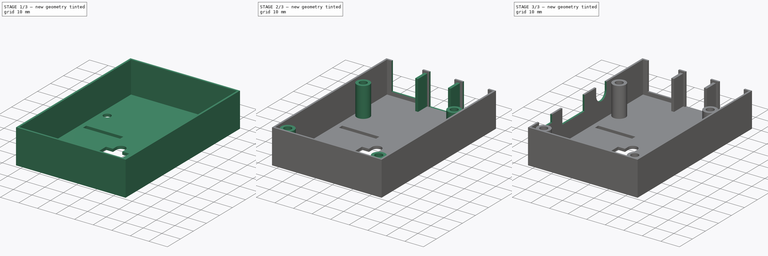
[diagram: build sequence overview — one tinted view per stage of 3, left to right]
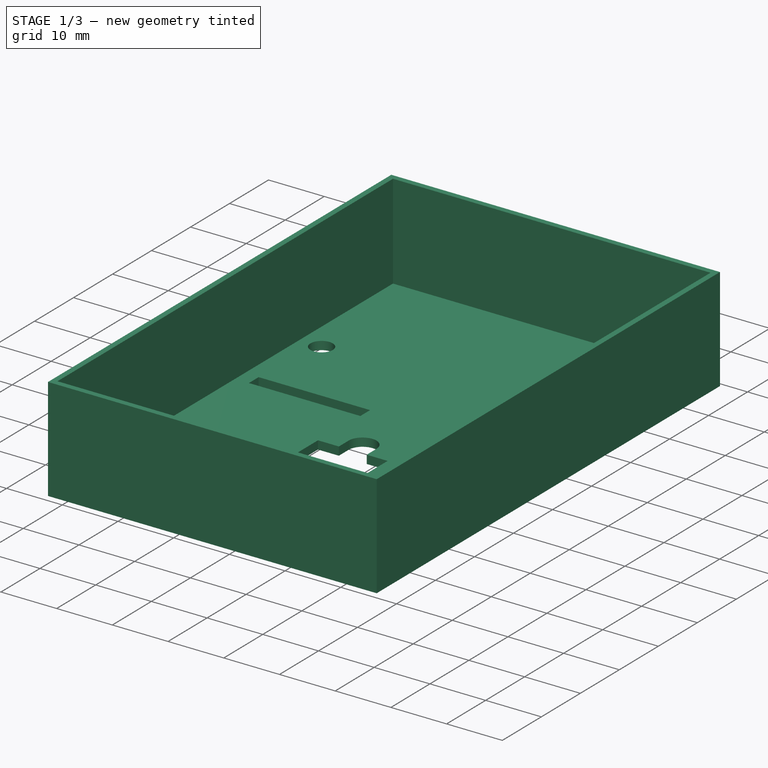
[diagram: stage 1 of 3 — iso view after this stage's code; geometry added in this stage tinted green]
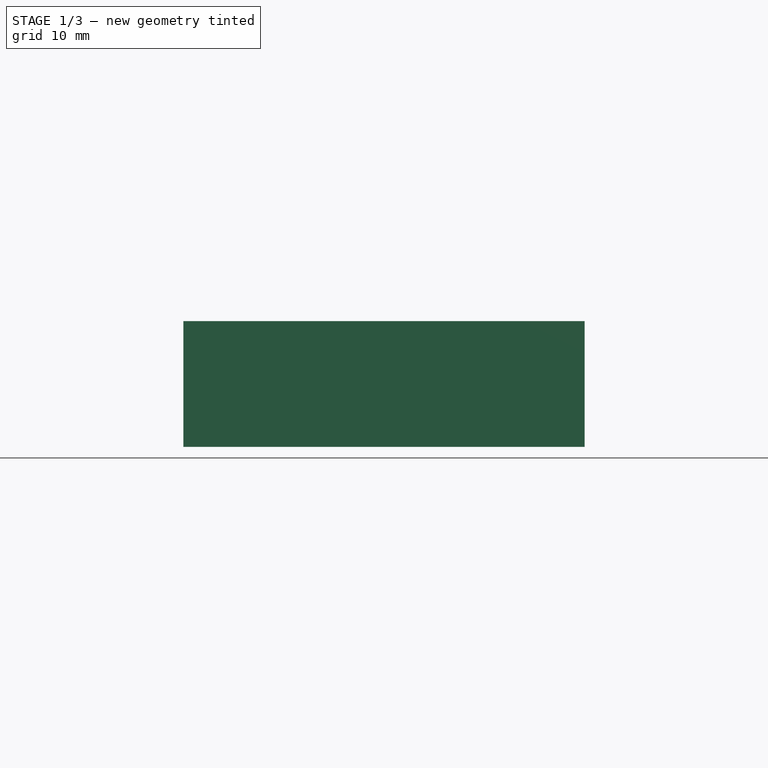
[diagram: stage 1 of 3 — front view after this stage's code; geometry added in this stage tinted green]
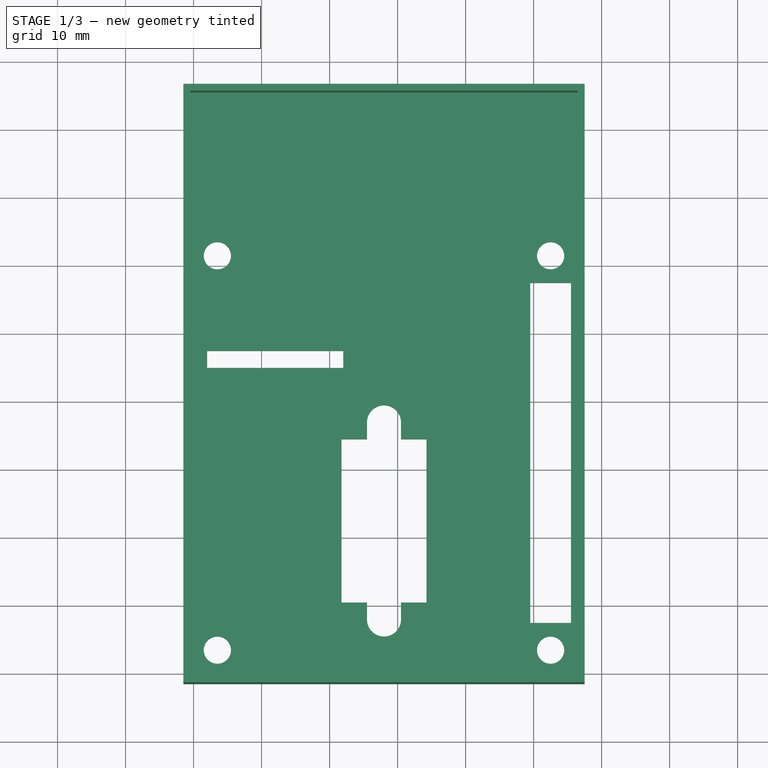
[diagram: stage 1 of 3 — top view after this stage's code; geometry added in this stage tinted green]
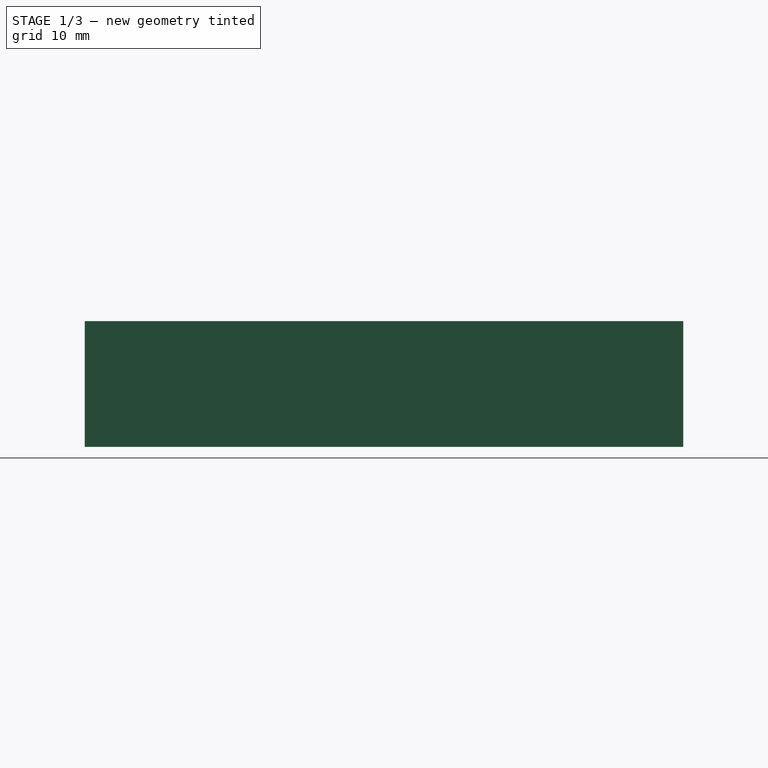
[diagram: stage 1 of 3 — right view after this stage's code; geometry added in this stage tinted green]
FCSTD DOCUMENT  (FreeCAD 0.16R6179 (Git))
Label: CaseTop
License: All rights reserved
LicenseURL: http://en.wikipedia.org/wiki/All_rights_reserved
objects: Sketcher::SketchObject×6, PartDesign::Pocket×4, PartDesign::Pad×2
note: 18 computed .brp shape members not serialized (recipe doc carries the construction recipe); baked Part::Feature solids carry a one-line shape summary decoded from their .brp

FEATURE [Sketcher::SketchObject] Sketch
  sketch-geometry (37):
    g0: LineSegment StartX=-1.5 StartY=86.5 StartZ=0 EndX=57.5 EndY=86.5 EndZ=0
    g1: LineSegment StartX=57.5 StartY=86.5 StartZ=0 EndX=57.5 EndY=-1.5 EndZ=0
    g2: LineSegment StartX=57.5 StartY=-1.5 StartZ=0 EndX=-1.5 EndY=-1.5 EndZ=0
    g3: LineSegment StartX=-1.5 StartY=-1.5 StartZ=0 EndX=-1.5 EndY=86.5 EndZ=0
    g4: LineSegment [constr] StartX=3.5 StartY=61.5 StartZ=0 EndX=52.5 EndY=61.5 EndZ=0
    g5: LineSegment [constr] StartX=52.5 StartY=61.5 StartZ=0 EndX=52.5 EndY=3.5 EndZ=0
    g6: LineSegment [constr] StartX=52.5 StartY=3.5 StartZ=0 EndX=3.5 EndY=3.5 EndZ=0
    g7: LineSegment [constr] StartX=3.5 StartY=3.5 StartZ=0 EndX=3.5 EndY=61.5 EndZ=0
    g8: Circle CenterX=3.5 CenterY=61.5 CenterZ=0 NormalX=0 NormalY=0 NormalZ=1 Radius=2
    g9: Circle CenterX=52.5 CenterY=61.5 CenterZ=0 NormalX=0 NormalY=0 NormalZ=1 Radius=2
    g10: Circle CenterX=52.5 CenterY=3.5 CenterZ=0 NormalX=0 NormalY=0 NormalZ=1 Radius=2
    g11: Circle CenterX=3.5 CenterY=3.5 CenterZ=0 NormalX=0 NormalY=0 NormalZ=1 Radius=2
    g12: LineSegment StartX=2 StartY=45 StartZ=0 EndX=22 EndY=45 EndZ=0
    g13: LineSegment StartX=22 StartY=45 StartZ=0 EndX=22 EndY=47.5 EndZ=0
    g14: LineSegment StartX=22 StartY=47.5 StartZ=0 EndX=2 EndY=47.5 EndZ=0
    g15: LineSegment StartX=2 StartY=47.5 StartZ=0 EndX=2 EndY=45 EndZ=0
    g16: LineSegment StartX=21.75 StartY=34.5 StartZ=0 EndX=25.5 EndY=34.5 EndZ=0
    g17: LineSegment StartX=34.25 StartY=34.5 StartZ=0 EndX=34.25 EndY=10.5 EndZ=0
    g18: LineSegment StartX=34.25 StartY=10.5 StartZ=0 EndX=30.5 EndY=10.5 EndZ=0
    g19: LineSegment StartX=21.75 StartY=10.5 StartZ=0 EndX=21.75 EndY=34.5 EndZ=0
    g20: LineSegment [constr] StartX=7.91921 StartY=22.5 StartZ=0 EndX=43.2159 EndY=22.5 EndZ=0
    g21: LineSegment [constr] StartX=28 StartY=92.2759 StartZ=0 EndX=28 EndY=-5.97798 EndZ=0
    g22: ArcOfCircle CenterX=28 CenterY=37 CenterZ=0 NormalX=0 NormalY=0 NormalZ=1 Radius=2.5 StartAngle=0 EndAngle=3.14159
    g23: GeomPoint [constr] X=28 Y=34.5 Z=0
    g24: LineSegment StartX=25.5 StartY=37 StartZ=0 EndX=25.5 EndY=34.5 EndZ=0
    g25: LineSegment StartX=30.5 StartY=37 StartZ=0 EndX=30.5 EndY=34.5 EndZ=0
    g26: LineSegment StartX=30.5 StartY=34.5 StartZ=0 EndX=34.25 EndY=34.5 EndZ=0
    g27: ArcOfCircle CenterX=28 CenterY=8 CenterZ=0 NormalX=0 NormalY=0 NormalZ=1 Radius=2.5 StartAngle=3.14159 EndAngle=6.28319
    g28: GeomPoint [constr] X=28 Y=10.5 Z=0
    g29: LineSegment StartX=25.5 StartY=8 StartZ=0 EndX=25.5 EndY=10.5 EndZ=0
    g30: LineSegment StartX=30.5 StartY=8 StartZ=0 EndX=30.5 EndY=10.5 EndZ=0
    g31: LineSegment StartX=25.5 StartY=10.5 StartZ=0 EndX=21.75 EndY=10.5 EndZ=0
    g32: LineSegment StartX=49.5 StartY=57.5 StartZ=0 EndX=55.5 EndY=57.5 EndZ=0
    g33: LineSegment StartX=55.5 StartY=57.5 StartZ=0 EndX=55.5 EndY=7.5 EndZ=0
    g34: LineSegment StartX=55.5 StartY=7.5 StartZ=0 EndX=49.5 EndY=7.5 EndZ=0
    g35: LineSegment StartX=49.5 StartY=7.5 StartZ=0 EndX=49.5 EndY=57.5 EndZ=0
    g36: LineSegment [constr] StartX=47.3202 StartY=32.5 StartZ=0 EndX=56.7615 EndY=32.5 EndZ=0
  constraints (108):
    c: Coincident(g0,g1)
    c: Coincident(g1,g2)
    c: Coincident(g2,g3)
    c: Coincident(g3,g0)
    c: Horizontal(g0)
    c: Horizontal(g2)
    c: Vertical(g1)
    c: Vertical(g3)
    c: Distance(g0) = 59
    c: Distance(g3) = 88
    c: DistanceX(g-1,g2) = -1.5
    c: DistanceY(g-1,g2) = -1.5
    c: Coincident(g4,g5)
    c: Coincident(g5,g6)
    c: Coincident(g6,g7)
    c: Coincident(g7,g4)
    c: Horizontal(g4)
    c: Horizontal(g6)
    c: Vertical(g5)
    c: Vertical(g7)
    c: DistanceX(g-1,g6) = 3.5
    c: DistanceY(g-1,g6) = 3.5
    c: Distance(g6) = 49
    c: Distance(g7) = 58
    c: Coincident(g8,g4)
    c: Coincident(g9,g4)
    c: Coincident(g10,g5)
    c: Coincident(g11,g6)
    c: Equal(g10,g11)
    c: Equal(g11,g8)
    c: Equal(g8,g9)
    c: Radius(g9) = 2
    c: Coincident(g12,g13)
    c: Coincident(g13,g14)
    c: Coincident(g14,g15)
    c: Coincident(g15,g12)
    c: Horizontal(g12)
    c: Horizontal(g14)
    c: Vertical(g13)
    c: Vertical(g15)
    c: DistanceY(g-1,g12) = 45
    c: Distance(g15) = 2.5
    c: Distance(g14) = 20
    c: DistanceX(g-1,g12) = 2
    c: Coincident(g26,g17)
    c: Coincident(g17,g18)
    c: Coincident(g31,g19)
    c: Coincident(g19,g16)
    c: Horizontal(g16)
    c: Horizontal(g18)
    c: Vertical(g17)
    c: Vertical(g19)
    c: Distance(g17) = 24
    c: Horizontal(g20)
    c: DistanceY(g20,g12) = 22.5
    c: Symmetric(g16,g31,g20)
    c: Vertical(g21)
    c: DistanceX(g-1,g21) = 28
    c: DistanceY(g-1,g21) = -5.97798
    c: Symmetric(g16,g26,g21)
    c: Distance(g21) = 98.2539
    c: Distance(g20) = 35.2967
    c: DistanceX(g-1,g20) = 7.91921
    c: PointOnObject(g22,g21)
    c: PointOnObject(g23,g21)
    c: PointOnObject(g23,g16)
    c: DistanceY(g23,g22) = 2.5
    c: DistanceY(g22,g22) = 0
    c: DistanceY(g22,g22) = 0
    c: Radius(g22) = 2.5
    c: Coincident(g24,g22)
    c: Vertical(g24)
    c: Coincident(g25,g22)
    c: Vertical(g25)
    c: Coincident(g26,g25)
    c: Tangent(g16,g26)
    c: Coincident(g16,g24)
    c: PointOnObject(g27,g21)
    c: PointOnObject(g28,g21)
    c: PointOnObject(g28,g18)
    c: DistanceY(g27,g28) = 2.5
    c: DistanceY(g27,g27) = 0
    c: DistanceY(g27,g27) = 0
    c: Radius(g27) = 2.5
    c: Coincident(g29,g27)
    c: Vertical(g29)
    c: Coincident(g30,g27)
    c: Vertical(g30)
    c: Coincident(g31,g29)
    c: Tangent(g18,g31)
    c: Coincident(g18,g30)
    c: DistanceX(g16,g17) = 12.5
    c: Coincident(g32,g33)
    c: Coincident(g33,g34)
    c: Coincident(g34,g35)
    c: Coincident(g35,g32)
    c: Horizontal(g32)
    c: Horizontal(g34)
    c: Vertical(g33)
    c: Vertical(g35)
    c: Symmetric(g33,g34,g5)
    c: Distance(g32) = 6
    c: Distance(g33) = 50
    c: Horizontal(g36)
    c: Distance(g36) = 9.44131
    c: DistanceY(g36,g4) = 29
    c: DistanceX(g36,g4) = -4.26154
    c: Symmetric(g33,g32,g36)
FEATURE [PartDesign::Pad] Pad  label="Outside"
  Length = 18.5
  Length2 = 100
  Sketch = -> Sketch
  Type = 0
FEATURE [Sketcher::SketchObject] Sketch001
  ExternalGeometry = -> [Pad]
  Placement = pos=(0,0,18.5) rot=(0,0,1;0rad)
  Support = -> Pad [Face30]
  sketch-geometry (4):
    g0: LineSegment StartX=-0.5 StartY=-0.5 StartZ=0 EndX=56.5 EndY=-0.5 EndZ=0
    g1: LineSegment StartX=56.5 StartY=-0.5 StartZ=0 EndX=56.5 EndY=85.5 EndZ=0
    g2: LineSegment StartX=56.5 StartY=85.5 StartZ=0 EndX=-0.5 EndY=85.5 EndZ=0
    g3: LineSegment StartX=-0.5 StartY=85.5 StartZ=0 EndX=-0.5 EndY=-0.5 EndZ=0
  constraints (12):
    c: Coincident(g0,g1)
    c: Coincident(g1,g2)
    c: Coincident(g2,g3)
    c: Coincident(g3,g0)
    c: Horizontal(g0)
    c: Horizontal(g2)
    c: Vertical(g1)
    c: Vertical(g3)
    c: DistanceY(g-3,g0) = 1
    c: DistanceX(g-3,g0) = 1
    c: DistanceX(g0,g-3) = 1
    c: DistanceY(g2,g-4) = 1
FEATURE [PartDesign::Pocket] Pocket  label="Inside"
  Length = 17
  Sketch = -> Sketch001
  Type = 0
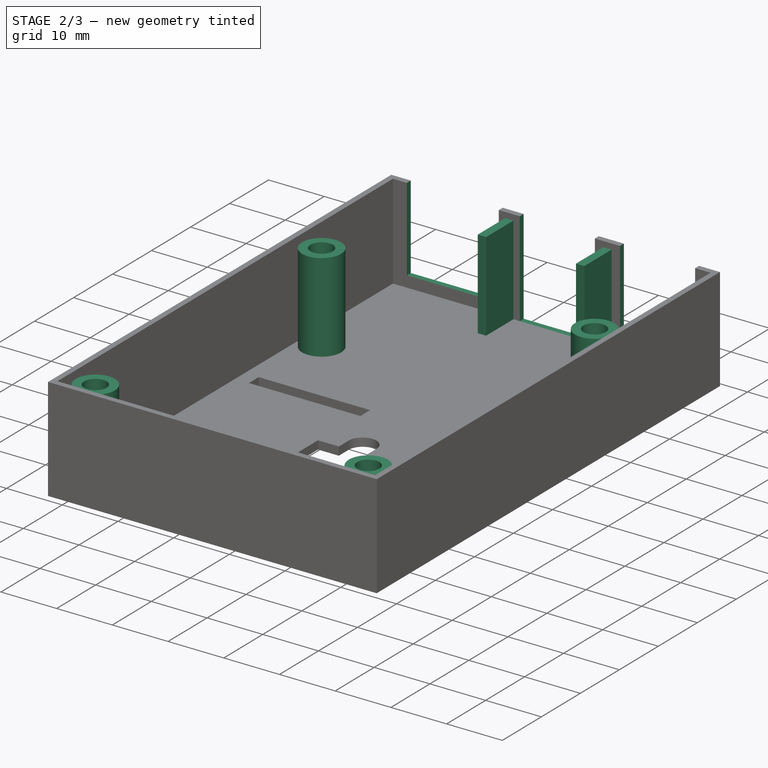
[diagram: stage 2 of 3 — iso view after this stage's code; geometry added in this stage tinted green]
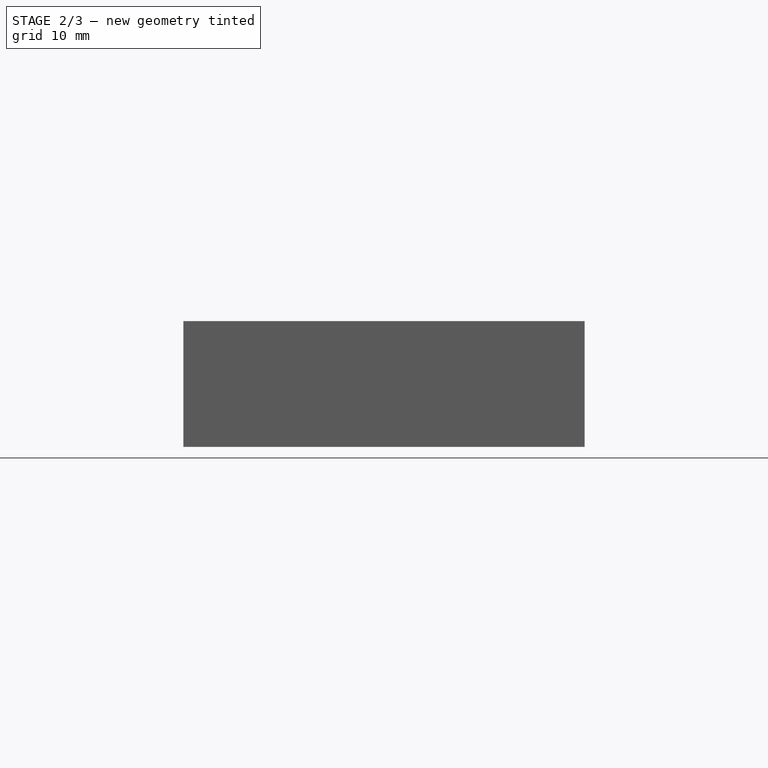
[diagram: stage 2 of 3 — front view after this stage's code; geometry added in this stage tinted green]
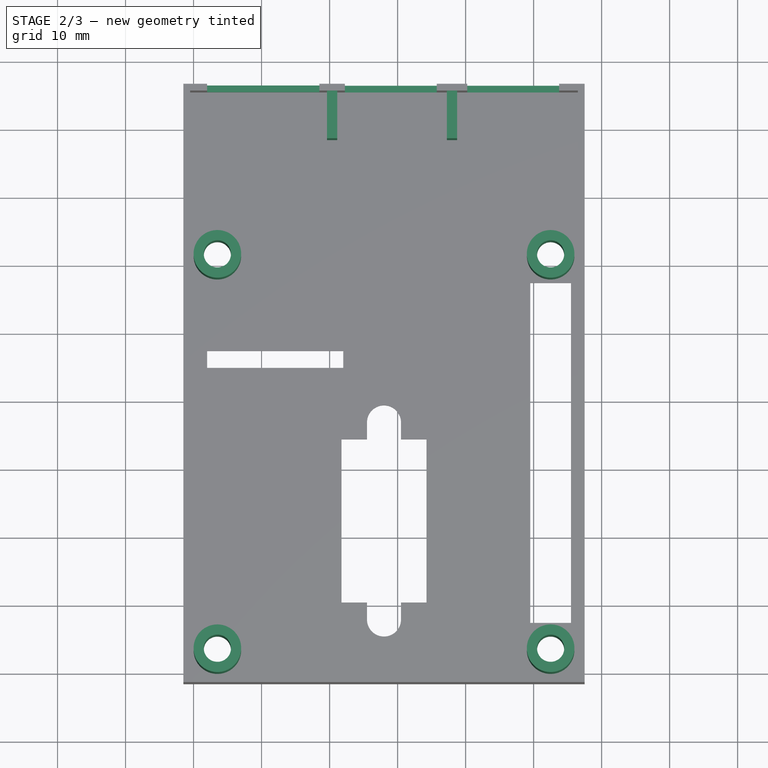
[diagram: stage 2 of 3 — top view after this stage's code; geometry added in this stage tinted green]
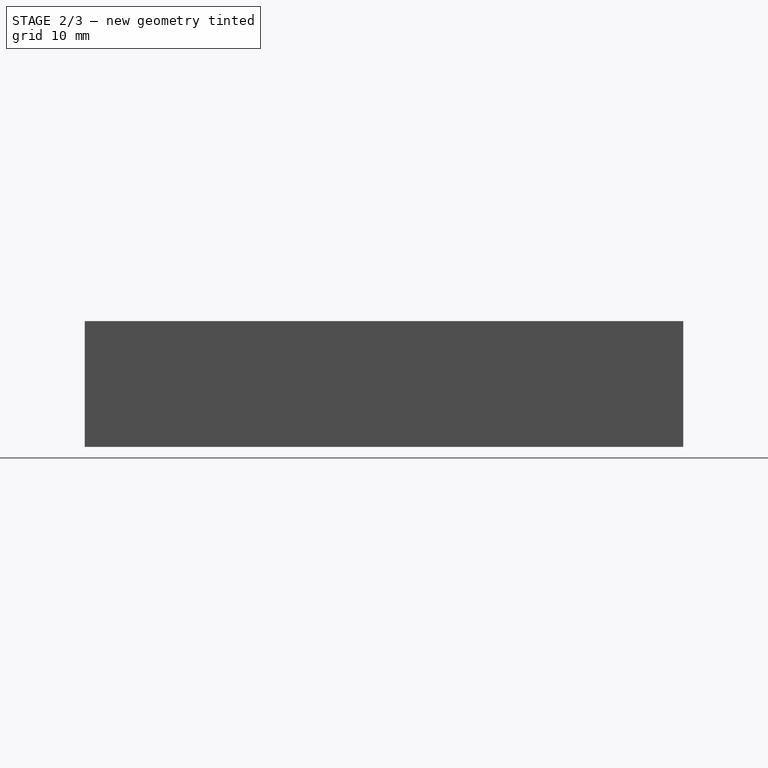
[diagram: stage 2 of 3 — right view after this stage's code; geometry added in this stage tinted green]
FEATURE [Sketcher::SketchObject] Sketch003
  ExternalGeometry = -> [Pocket]
  Placement = pos=(0,86.5,0) rot=(0,0.707107,0.707107;3.14159rad)
  Support = -> Pocket [Face3]
  sketch-geometry (15):
    g0: LineSegment [constr] StartX=-10.25 StartY=24 StartZ=0 EndX=-10.25 EndY=-7 EndZ=0
    g1: LineSegment [constr] StartX=-29 StartY=24 StartZ=0 EndX=-29 EndY=-7 EndZ=0
    g2: LineSegment [constr] StartX=-47 StartY=24 StartZ=0 EndX=-47 EndY=-7 EndZ=0
    g3: LineSegment StartX=-2 StartY=18.5 StartZ=0 EndX=-18.5 EndY=18.5 EndZ=0
    g4: LineSegment StartX=-18.5 StartY=18.5 StartZ=0 EndX=-18.5 EndY=3.5 EndZ=0
    g5: LineSegment StartX=-18.5 StartY=3.5 StartZ=0 EndX=-2 EndY=3.5 EndZ=0
    g6: LineSegment StartX=-2 StartY=3.5 StartZ=0 EndX=-2 EndY=18.5 EndZ=0
    g7: LineSegment StartX=-22.25 StartY=18.5 StartZ=0 EndX=-35.75 EndY=18.5 EndZ=0
    g8: LineSegment StartX=-35.75 StartY=18.5 StartZ=0 EndX=-35.75 EndY=1.5 EndZ=0
    g9: LineSegment StartX=-35.75 StartY=1.5 StartZ=0 EndX=-22.25 EndY=1.5 EndZ=0
    g10: LineSegment StartX=-22.25 StartY=1.5 StartZ=0 EndX=-22.25 EndY=18.5 EndZ=0
    g11: LineSegment StartX=-40.25 StartY=18.5 StartZ=0 EndX=-53.75 EndY=18.5 EndZ=0
    g12: LineSegment StartX=-53.75 StartY=18.5 StartZ=0 EndX=-53.75 EndY=1.5 EndZ=0
    g13: LineSegment StartX=-53.75 StartY=1.5 StartZ=0 EndX=-40.25 EndY=1.5 EndZ=0
    g14: LineSegment StartX=-40.25 StartY=1.5 StartZ=0 EndX=-40.25 EndY=18.5 EndZ=0
  constraints (48):
    c: Vertical(g0)
    c: Vertical(g1)
    c: Vertical(g2)
    c: Equal(g2,g1)
    c: Equal(g1,g0)
    c: DistanceY(g-1,g0) = -7
    c: DistanceY(g1,g0) = 0
    c: DistanceY(g2,g1) = 0
    c: Distance(g0) = 31
    c: DistanceX(g-1,g0) = -10.25
    c: DistanceX(g-1,g1) = -29
    c: DistanceX(g-1,g2) = -47
    c: Coincident(g3,g4)
    c: Coincident(g4,g5)
    c: Coincident(g5,g6)
    c: Coincident(g6,g3)
    c: Horizontal(g3)
    c: Horizontal(g5)
    c: Vertical(g4)
    c: Vertical(g6)
    c: PointOnObject(g3,g-3)
    c: Coincident(g7,g8)
    c: Coincident(g8,g9)
    c: Coincident(g9,g10)
    c: Coincident(g10,g7)
    c: Horizontal(g7)
    c: Horizontal(g9)
    c: Vertical(g8)
    c: Vertical(g10)
    c: PointOnObject(g7,g-3)
    c: Coincident(g11,g12)
    c: Coincident(g12,g13)
    c: Coincident(g13,g14)
    c: Coincident(g14,g11)
    c: Horizontal(g11)
    c: Horizontal(g13)
    c: Vertical(g12)
    c: Vertical(g14)
    c: PointOnObject(g11,g-3)
    c: Distance(g5) = 16.5
    c: Distance(g9) = 13.5
    c: Distance(g13) = 13.5
    c: Symmetric(g5,g4,g0)
    c: Symmetric(g8,g9,g1)
    c: Symmetric(g13,g12,g2)
    c: Distance(g6) = 15
    c: Distance(g10) = 17
    c: Distance(g14) = 17
FEATURE [PartDesign::Pocket] Pocket001  label="UsbSide"
  Length = 5
  Sketch = -> Sketch003
  Type = 2
FEATURE [Sketcher::SketchObject] Sketch004
  ExternalGeometry = -> [Pocket001]
  Placement = pos=(0,0,1.5) rot=(0,0,1;0rad)
  Support = -> Pocket001 [Face47]
  sketch-geometry (22):
    g0: LineSegment [constr] StartX=20.375 StartY=85.5 StartZ=0 EndX=20.375 EndY=75.5 EndZ=0
    g1: LineSegment [constr] StartX=38 StartY=85.5 StartZ=0 EndX=38 EndY=75.5 EndZ=0
    g2: LineSegment StartX=19.625 StartY=85.5 StartZ=0 EndX=21.125 EndY=85.5 EndZ=0
    g3: LineSegment StartX=21.125 StartY=85.5 StartZ=0 EndX=21.125 EndY=78.5 EndZ=0
    g4: LineSegment StartX=21.125 StartY=78.5 StartZ=0 EndX=19.625 EndY=78.5 EndZ=0
    g5: LineSegment StartX=19.625 StartY=78.5 StartZ=0 EndX=19.625 EndY=85.5 EndZ=0
    g6: LineSegment StartX=37.25 StartY=85.5 StartZ=0 EndX=38.75 EndY=85.5 EndZ=0
    g7: LineSegment StartX=38.75 StartY=85.5 StartZ=0 EndX=38.75 EndY=78.5 EndZ=0
    g8: LineSegment StartX=38.75 StartY=78.5 StartZ=0 EndX=37.25 EndY=78.5 EndZ=0
    g9: LineSegment StartX=37.25 StartY=78.5 StartZ=0 EndX=37.25 EndY=85.5 EndZ=0
    g10: LineSegment [constr] StartX=3.5 StartY=3.5 StartZ=0 EndX=52.5 EndY=3.5 EndZ=0
    g11: LineSegment [constr] StartX=52.5 StartY=3.5 StartZ=0 EndX=52.5 EndY=61.5 EndZ=0
    g12: LineSegment [constr] StartX=52.5 StartY=61.5 StartZ=0 EndX=3.5 EndY=61.5 EndZ=0
    g13: LineSegment [constr] StartX=3.5 StartY=61.5 StartZ=0 EndX=3.5 EndY=3.5 EndZ=0
    g14: Circle CenterX=3.5 CenterY=61.5 CenterZ=0 NormalX=0 NormalY=0 NormalZ=1 Radius=3.5
    g15: Circle CenterX=52.5 CenterY=61.5 CenterZ=0 NormalX=0 NormalY=0 NormalZ=1 Radius=3.5
    g16: Circle CenterX=52.5 CenterY=3.5 CenterZ=0 NormalX=0 NormalY=0 NormalZ=1 Radius=3.5
    g17: Circle CenterX=3.5 CenterY=3.5 CenterZ=0 NormalX=0 NormalY=0 NormalZ=1 Radius=3.5
    g18: Circle CenterX=3.5 CenterY=61.5 CenterZ=0 NormalX=0 NormalY=0 NormalZ=1 Radius=2
    g19: Circle CenterX=52.5 CenterY=61.5 CenterZ=0 NormalX=0 NormalY=0 NormalZ=1 Radius=2
    g20: Circle CenterX=52.5 CenterY=3.5 CenterZ=0 NormalX=0 NormalY=0 NormalZ=1 Radius=2
    g21: Circle CenterX=3.5 CenterY=3.5 CenterZ=0 NormalX=0 NormalY=0 NormalZ=1 Radius=2
  constraints (58):
    c: PointOnObject(g0,g-3)
    c: Symmetric(g-3,g-3,g0)
    c: PointOnObject(g1,g-4)
    c: Symmetric(g-4,g-4,g1)
    c: Coincident(g2,g3)
    c: Coincident(g3,g4)
    c: Coincident(g4,g5)
    c: Coincident(g5,g2)
    c: Horizontal(g2)
    c: Horizontal(g4)
    c: Vertical(g3)
    c: Vertical(g5)
    c: PointOnObject(g2,g-3)
    c: Coincident(g6,g7)
    c: Coincident(g7,g8)
    c: Coincident(g8,g9)
    c: Coincident(g9,g6)
    c: Horizontal(g6)
    c: Horizontal(g8)
    c: Vertical(g7)
    c: Vertical(g9)
    c: Distance(g4) = 1.5
    c: Distance(g8) = 1.5
    c: Symmetric(g7,g8,g1)
    c: Symmetric(g3,g4,g0)
    c: Distance(g7) = 7
    c: Distance(g3) = 7
    c: Distance(g0) = 10
    c: Distance(g1) = 10
    c: PointOnObject(g6,g-4)
    c: Coincident(g10,g11)
    c: Coincident(g11,g12)
    c: Coincident(g12,g13)
    c: Coincident(g13,g10)
    c: Horizontal(g10)
    c: Horizontal(g12)
    c: Vertical(g11)
    c: Vertical(g13)
    c: DistanceX(g-1,g10) = 3.5
    c: DistanceY(g-1,g10) = 3.5
    c: Distance(g13) = 58
    c: Distance(g10) = 49
    c: Coincident(g14,g12)
    c: Coincident(g15,g11)
    c: Coincident(g16,g10)
    c: Coincident(g17,g10)
    c: Equal(g16,g17)
    c: Equal(g17,g14)
    c: Equal(g14,g15)
    c: Radius(g16) = 3.5
    c: Coincident(g18,g12)
    c: Coincident(g19,g11)
    c: Coincident(g20,g10)
    c: Coincident(g21,g10)
    c: Equal(g20,g21)
    c: Equal(g21,g18)
    c: Equal(g18,g19)
    c: Radius(g20) = 2
FEATURE [PartDesign::Pad] Pad001  label="InsideFeatures"
  Length = 16
  Length2 = 100
  Sketch = -> Sketch004
  Type = 0
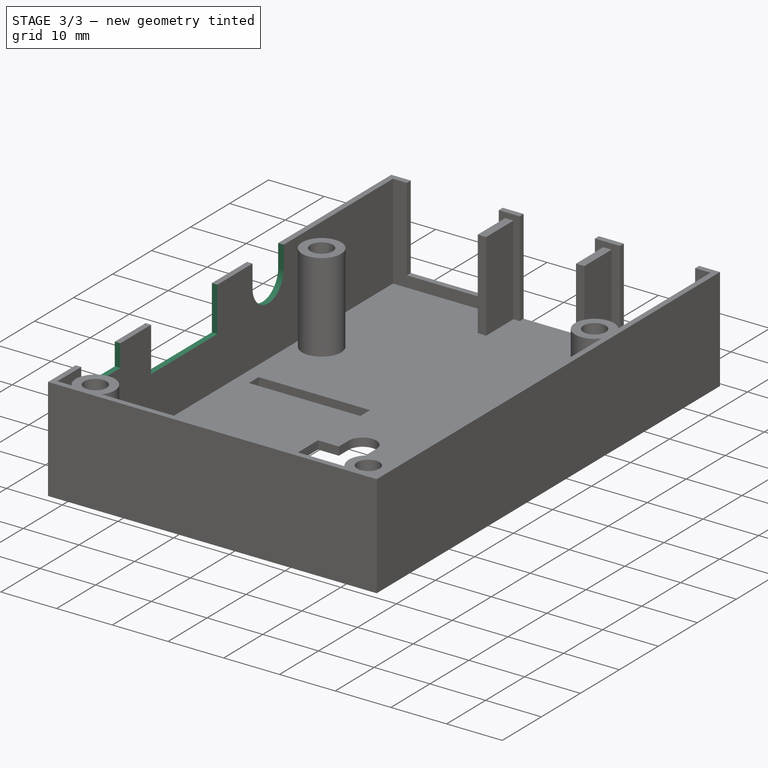
[diagram: stage 3 of 3 — iso view after this stage's code; geometry added in this stage tinted green]
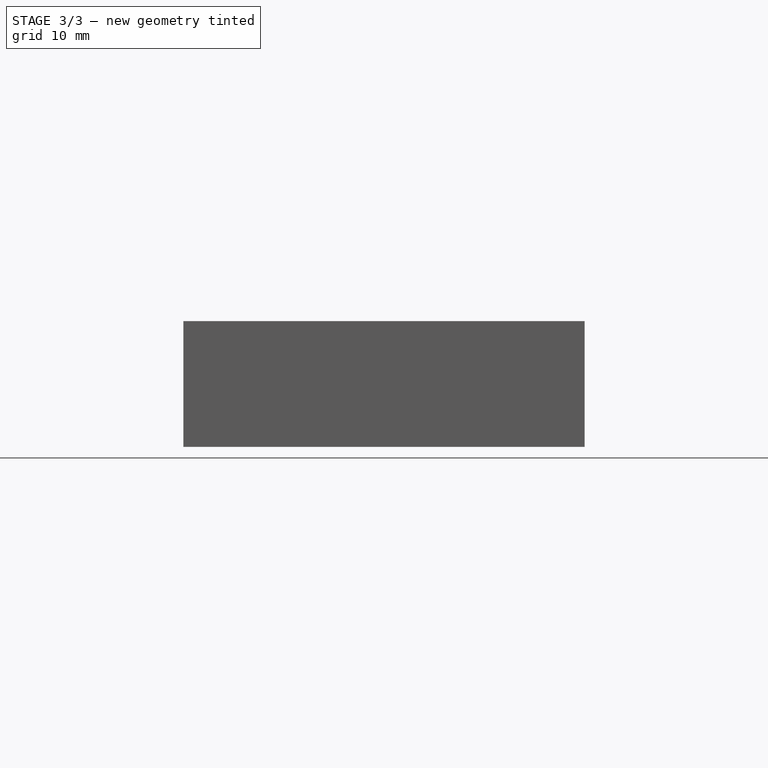
[diagram: stage 3 of 3 — front view after this stage's code; geometry added in this stage tinted green]
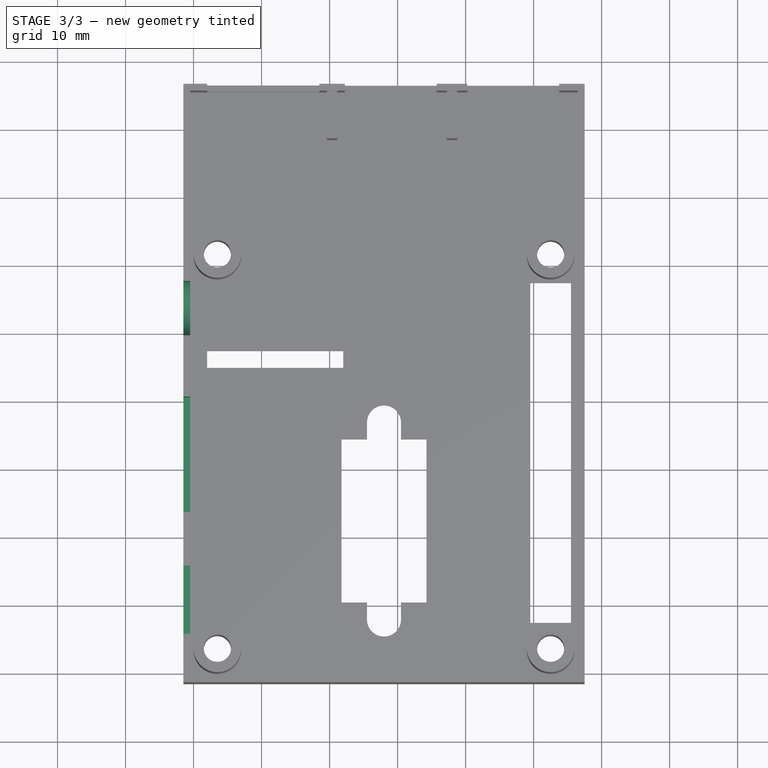
[diagram: stage 3 of 3 — top view after this stage's code; geometry added in this stage tinted green]
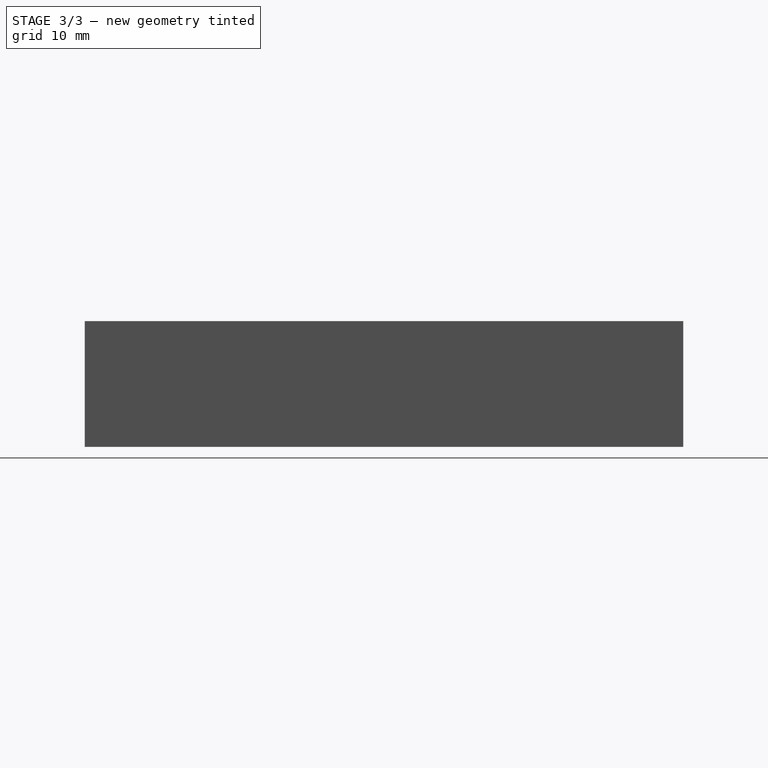
[diagram: stage 3 of 3 — right view after this stage's code; geometry added in this stage tinted green]
FEATURE [Sketcher::SketchObject] Sketch005
  ExternalGeometry = -> [Pad001]
  Placement = pos=(-1.5,0,0) rot=(0.57735,-0.57735,-0.57735;2.0944rad)
  Support = -> Pad001 [Face1]
  sketch-geometry (15):
    g0: LineSegment [constr] StartX=-10.6 StartY=18.5 StartZ=0 EndX=-10.6 EndY=6.5 EndZ=0
    g1: LineSegment [constr] StartX=-32 StartY=18.5 StartZ=0 EndX=-32 EndY=6.5 EndZ=0
    g2: LineSegment [constr] StartX=-53.5 StartY=18.5 StartZ=0 EndX=-53.5 EndY=6.5 EndZ=0
    g3: LineSegment StartX=-15.6 StartY=18.5 StartZ=0 EndX=-5.6 EndY=18.5 EndZ=0
    g4: LineSegment StartX=-5.6 StartY=18.5 StartZ=0 EndX=-5.6 EndY=14.5 EndZ=0
    g5: LineSegment StartX=-5.6 StartY=14.5 StartZ=0 EndX=-15.6 EndY=14.5 EndZ=0
    g6: LineSegment StartX=-15.6 StartY=14.5 StartZ=0 EndX=-15.6 EndY=18.5 EndZ=0
    g7: LineSegment StartX=-40.5 StartY=18.5 StartZ=0 EndX=-23.5 EndY=18.5 EndZ=0
    g8: LineSegment StartX=-23.5 StartY=18.5 StartZ=0 EndX=-23.5 EndY=10.5 EndZ=0
    g9: LineSegment StartX=-23.5 StartY=10.5 StartZ=0 EndX=-40.5 EndY=10.5 EndZ=0
    g10: LineSegment StartX=-40.5 StartY=10.5 StartZ=0 EndX=-40.5 EndY=18.5 EndZ=0
    g11: LineSegment StartX=-57.5 StartY=18.5 StartZ=0 EndX=-49.5 EndY=18.5 EndZ=0
    g12: LineSegment StartX=-49.5 StartY=18.5 StartZ=0 EndX=-49.5 EndY=14.5 EndZ=0
    g13: LineSegment StartX=-57.5 StartY=14.5 StartZ=0 EndX=-57.5 EndY=18.5 EndZ=0
    g14: ArcOfCircle CenterX=-53.5 CenterY=14.5 CenterZ=0 NormalX=0 NormalY=0 NormalZ=1 Radius=4 StartAngle=3.14159 EndAngle=6.28319
  constraints (49):
    c: PointOnObject(g0,g-3)
    c: Vertical(g0)
    c: PointOnObject(g1,g-3)
    c: Vertical(g1)
    c: PointOnObject(g2,g-3)
    c: Vertical(g2)
    c: Equal(g0,g1)
    c: Equal(g1,g2)
    c: Distance(g0) = 12
    c: Coincident(g3,g4)
    c: Coincident(g4,g5)
    c: Coincident(g5,g6)
    c: Coincident(g6,g3)
    c: Horizontal(g3)
    c: Horizontal(g5)
    c: Vertical(g4)
    c: Vertical(g6)
    c: PointOnObject(g3,g-3)
    c: Coincident(g7,g8)
    c: Coincident(g8,g9)
    c: Coincident(g9,g10)
    c: Coincident(g10,g7)
    c: Horizontal(g7)
    c: Horizontal(g9)
    c: Vertical(g8)
    c: Vertical(g10)
    c: PointOnObject(g7,g-3)
    c: Distance(g5) = 10
    c: Distance(g9) = 17
    c: Distance(g4) = 4
    c: Symmetric(g5,g4,g0)
    c: DistanceX(g-1,g0) = -10.6
    c: DistanceX(g-1,g1) = -32
    c: Symmetric(g9,g8,g1)
    c: DistanceX(g-1,g2) = -53.5
    c: Coincident(g11,g12)
    c: Coincident(g13,g11)
    c: Horizontal(g11)
    c: Vertical(g12)
    c: Vertical(g13)
    c: PointOnObject(g11,g-3)
    c: Distance(g12) = 4
    c: Symmetric(g13,g12,g2)
    c: PointOnObject(g14,g2)
    c: Coincident(g14,g12)
    c: Radius(g14) = 4
    c: Coincident(g13,g14)
    c: DistanceY(g14,g2) = 4
    c: Distance(g8) = 8
FEATURE [PartDesign::Pocket] Pocket002  label="HdmiSide"
  Length = 5
  Sketch = -> Sketch005
  Type = 2
FEATURE [Sketcher::SketchObject] Sketch006
  Placement = pos=(0,0,0) rot=(1,0,0;3.14159rad)
  Support = -> Pocket002 [Face2]
  sketch-geometry (8):
    g0: LineSegment [constr] StartX=3.5 StartY=-3.5 StartZ=0 EndX=52.5 EndY=-3.5 EndZ=0
    g1: LineSegment [constr] StartX=52.5 StartY=-3.5 StartZ=0 EndX=52.5 EndY=-61.5 EndZ=0
    g2: LineSegment [constr] StartX=52.5 StartY=-61.5 StartZ=0 EndX=3.5 EndY=-61.5 EndZ=0
    g3: LineSegment [constr] StartX=3.5 StartY=-61.5 StartZ=0 EndX=3.5 EndY=-3.5 EndZ=0
    g4: Circle CenterX=3.5 CenterY=-3.5 CenterZ=0 NormalX=0 NormalY=0 NormalZ=1 Radius=3
    g5: Circle CenterX=52.5 CenterY=-3.5 CenterZ=0 NormalX=0 NormalY=0 NormalZ=1 Radius=3
    g6: Circle CenterX=52.5 CenterY=-61.5 CenterZ=0 NormalX=0 NormalY=0 NormalZ=1 Radius=3
    g7: Circle CenterX=3.5 CenterY=-61.5 CenterZ=0 NormalX=0 NormalY=0 NormalZ=1 Radius=3
  constraints (20):
    c: Coincident(g0,g1)
    c: Coincident(g1,g2)
    c: Coincident(g2,g3)
    c: Coincident(g3,g0)
    c: Horizontal(g0)
    c: Horizontal(g2)
    c: Vertical(g1)
    c: Vertical(g3)
    c: DistanceX(g-1,g0) = 3.5
    c: DistanceY(g-1,g0) = -3.5
    c: Distance(g0) = 49
    c: Distance(g3) = 58
    c: Coincident(g4,g0)
    c: Coincident(g5,g0)
    c: Coincident(g6,g1)
    c: Coincident(g7,g2)
    c: Equal(g6,g7)
    c: Equal(g7,g4)
    c: Equal(g4,g5)
    c: Radius(g6) = 3
FEATURE [PartDesign::Pocket] Pocket003  label="SunkenScrews"
  Length = 3.5
  Sketch = -> Sketch006
  Type = 0
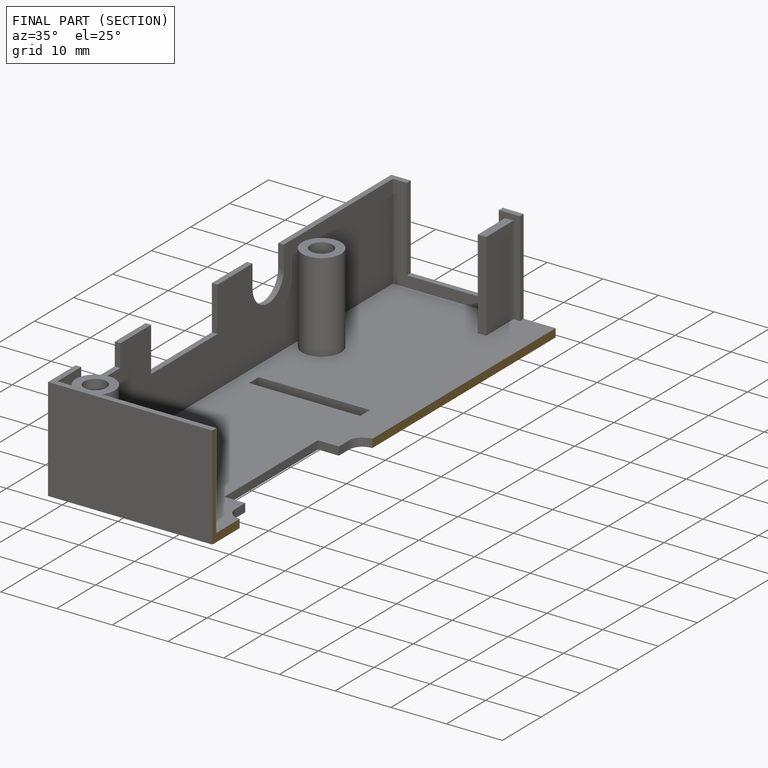
[diagram: finished part — half-section view (interior)]
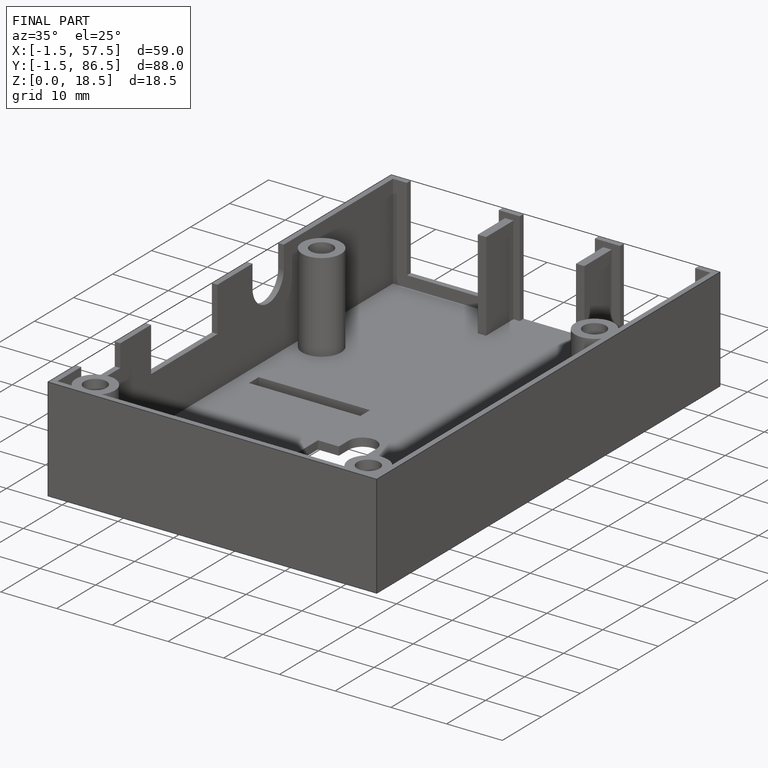
[diagram: finished part — iso view with bounding-box wireframe]
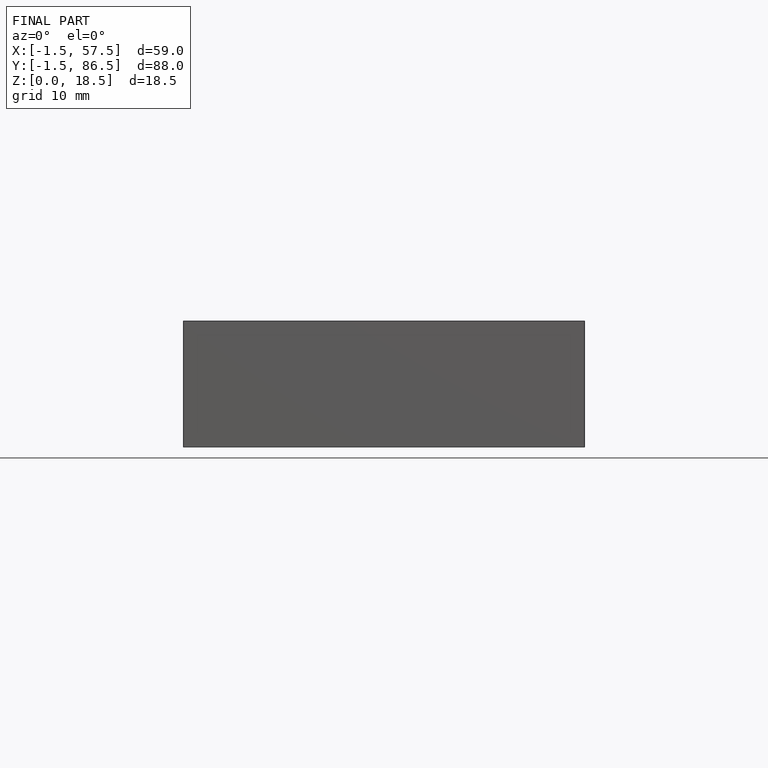
[diagram: finished part — front view with bounding-box wireframe]
